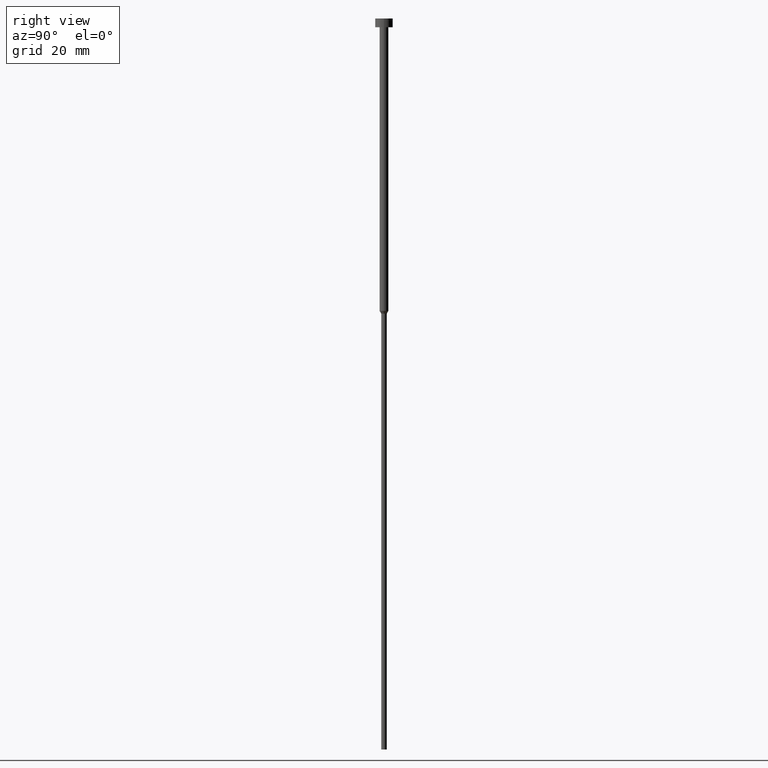
[diagram: clean part render]
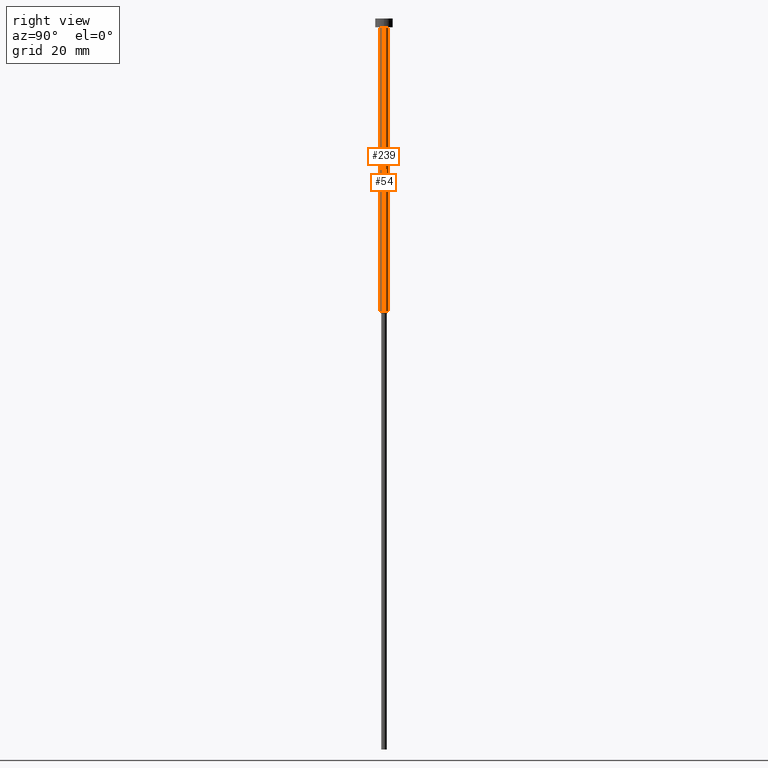
[diagram: same view with one multi-face feature highlighted, each face labeled with its STEP entity id]
A machine part, right view. The highlighted faces form ONE feature: a constant-radius fillet chain: 2 tangent blend faces with common blend radius 1.5 mm. The faces share edges in the B-rep.
Their STEP definitions:
[1] entity #239 (Cylinder):
#7 = EDGE_CURVE ( 'NONE', #134, #35, #20, .T. ) ;
#8 = CIRCLE ( 'NONE', #208, 1.500000000000000000 ) ;
#18 = ORIENTED_EDGE ( 'NONE', *, *, #7, .T. ) ;
#20 = LINE ( 'NONE', #65, #23 ) ;
#21 = ORIENTED_EDGE ( 'NONE', *, *, #204, .F. ) ;
#23 = VECTOR ( 'NONE', #169, 1000.000000000000000 ) ;
#35 = VERTEX_POINT ( 'NONE', #69 ) ;
#61 = EDGE_CURVE ( 'NONE', #263, #134, #317, .T. ) ;
#65 = CARTESIAN_POINT ( 'NONE',  ( 1.500000000000000000, 0.000000000000000000, 0.000000000000000000 ) ) ;
#69 = CARTESIAN_POINT ( 'NONE',  ( 1.500000000000000000, 0.000000000000000000, -3.000000000000000888 ) ) ;
#97 = CARTESIAN_POINT ( 'NONE',  ( 1.500000000000000000, 0.000000000000000000, -100.0000000000000000 ) ) ;
#101 = ORIENTED_EDGE ( 'NONE', *, *, #130, .F. ) ;
#118 = CARTESIAN_POINT ( 'NONE',  ( 0.000000000000000000, 0.000000000000000000, 0.000000000000000000 ) ) ;
#125 = ORIENTED_EDGE ( 'NONE', *, *, #61, .T. ) ;
#130 = EDGE_CURVE ( 'NONE', #263, #209, #258, .T. ) ;
#134 = VERTEX_POINT ( 'NONE', #97 ) ;
#144 = FACE_OUTER_BOUND ( 'NONE', #188, .T. ) ;
#147 = VECTOR ( 'NONE', #307, 1000.000000000000000 ) ;
#155 = CARTESIAN_POINT ( 'NONE',  ( -1.500000000000000000, 1.836970198721029934E-16, -100.0000000000000000 ) ) ;
#162 = AXIS2_PLACEMENT_3D ( 'NONE', #172, #330, #192 ) ;
#169 = DIRECTION ( 'NONE',  ( -0.000000000000000000, -0.000000000000000000, 1.000000000000000000 ) ) ;
#172 = CARTESIAN_POINT ( 'NONE',  ( 0.000000000000000000, 0.000000000000000000, -100.0000000000000000 ) ) ;
#182 = AXIS2_PLACEMENT_3D ( 'NONE', #118, #326, #332 ) ;
#188 = EDGE_LOOP ( 'NONE', ( #101, #125, #18, #21 ) ) ;
#192 = DIRECTION ( 'NONE',  ( 1.000000000000000000, 0.000000000000000000, 0.000000000000000000 ) ) ;
#204 = EDGE_CURVE ( 'NONE', #209, #35, #8, .T. ) ;
#208 = AXIS2_PLACEMENT_3D ( 'NONE', #238, #288, #242 ) ;
#209 = VERTEX_POINT ( 'NONE', #289 ) ;
#238 = CARTESIAN_POINT ( 'NONE',  ( 0.000000000000000000, 0.000000000000000000, -3.000000000000000888 ) ) ;
#239 = ADVANCED_FACE ( 'NONE', ( #144 ), #244, .T. ) ;
#242 = DIRECTION ( 'NONE',  ( 1.000000000000000000, 0.000000000000000000, 0.000000000000000000 ) ) ;
#244 = CYLINDRICAL_SURFACE ( 'NONE', #182, 1.500000000000000000 ) ;
#258 = LINE ( 'NONE', #343, #147 ) ;
#263 = VERTEX_POINT ( 'NONE', #155 ) ;
#288 = DIRECTION ( 'NONE',  ( -0.000000000000000000, -0.000000000000000000, 1.000000000000000000 ) ) ;
#289 = CARTESIAN_POINT ( 'NONE',  ( -1.500000000000000000, 1.836970198721029934E-16, -3.000000000000000888 ) ) ;
#307 = DIRECTION ( 'NONE',  ( -0.000000000000000000, -0.000000000000000000, 1.000000000000000000 ) ) ;
#317 = CIRCLE ( 'NONE', #162, 1.500000000000000000 ) ;
#326 = DIRECTION ( 'NONE',  ( -0.000000000000000000, -0.000000000000000000, 1.000000000000000000 ) ) ;
#330 = DIRECTION ( 'NONE',  ( -0.000000000000000000, -0.000000000000000000, 1.000000000000000000 ) ) ;
#332 = DIRECTION ( 'NONE',  ( 1.000000000000000000, 0.000000000000000000, 0.000000000000000000 ) ) ;
#343 = CARTESIAN_POINT ( 'NONE',  ( -1.500000000000000000, 1.836970198721029934E-16, 0.000000000000000000 ) ) ;
[2] entity #54 (Cylinder):
#3 = CARTESIAN_POINT ( 'NONE',  ( 0.000000000000000000, 0.000000000000000000, -100.0000000000000000 ) ) ;
#7 = EDGE_CURVE ( 'NONE', #134, #35, #20, .T. ) ;
#14 = ORIENTED_EDGE ( 'NONE', *, *, #270, .F. ) ;
#17 = CIRCLE ( 'NONE', #215, 1.500000000000000000 ) ;
#20 = LINE ( 'NONE', #65, #23 ) ;
#23 = VECTOR ( 'NONE', #169, 1000.000000000000000 ) ;
#25 = AXIS2_PLACEMENT_3D ( 'NONE', #216, #292, #87 ) ;
#35 = VERTEX_POINT ( 'NONE', #69 ) ;
#36 = DIRECTION ( 'NONE',  ( 1.000000000000000000, 0.000000000000000000, 0.000000000000000000 ) ) ;
#38 = DIRECTION ( 'NONE',  ( -0.000000000000000000, -0.000000000000000000, 1.000000000000000000 ) ) ;
#54 = ADVANCED_FACE ( 'NONE', ( #291 ), #120, .T. ) ;
#65 = CARTESIAN_POINT ( 'NONE',  ( 1.500000000000000000, 0.000000000000000000, 0.000000000000000000 ) ) ;
#69 = CARTESIAN_POINT ( 'NONE',  ( 1.500000000000000000, 0.000000000000000000, -3.000000000000000888 ) ) ;
#71 = CIRCLE ( 'NONE', #86, 1.500000000000000000 ) ;
#86 = AXIS2_PLACEMENT_3D ( 'NONE', #179, #269, #126 ) ;
#87 = DIRECTION ( 'NONE',  ( 1.000000000000000000, 0.000000000000000000, 0.000000000000000000 ) ) ;
#97 = CARTESIAN_POINT ( 'NONE',  ( 1.500000000000000000, 0.000000000000000000, -100.0000000000000000 ) ) ;
#120 = CYLINDRICAL_SURFACE ( 'NONE', #25, 1.500000000000000000 ) ;
#126 = DIRECTION ( 'NONE',  ( 1.000000000000000000, 0.000000000000000000, 0.000000000000000000 ) ) ;
#130 = EDGE_CURVE ( 'NONE', #263, #209, #258, .T. ) ;
#134 = VERTEX_POINT ( 'NONE', #97 ) ;
#147 = VECTOR ( 'NONE', #307, 1000.000000000000000 ) ;
#154 = ORIENTED_EDGE ( 'NONE', *, *, #130, .T. ) ;
#155 = CARTESIAN_POINT ( 'NONE',  ( -1.500000000000000000, 1.836970198721029934E-16, -100.0000000000000000 ) ) ;
#159 = ORIENTED_EDGE ( 'NONE', *, *, #290, .T. ) ;
#169 = DIRECTION ( 'NONE',  ( -0.000000000000000000, -0.000000000000000000, 1.000000000000000000 ) ) ;
#179 = CARTESIAN_POINT ( 'NONE',  ( 0.000000000000000000, 0.000000000000000000, -3.000000000000000888 ) ) ;
#209 = VERTEX_POINT ( 'NONE', #289 ) ;
#215 = AXIS2_PLACEMENT_3D ( 'NONE', #3, #38, #36 ) ;
#216 = CARTESIAN_POINT ( 'NONE',  ( 0.000000000000000000, 0.000000000000000000, 0.000000000000000000 ) ) ;
#258 = LINE ( 'NONE', #343, #147 ) ;
#263 = VERTEX_POINT ( 'NONE', #155 ) ;
#269 = DIRECTION ( 'NONE',  ( -0.000000000000000000, -0.000000000000000000, 1.000000000000000000 ) ) ;
#270 = EDGE_CURVE ( 'NONE', #35, #209, #71, .T. ) ;
#289 = CARTESIAN_POINT ( 'NONE',  ( -1.500000000000000000, 1.836970198721029934E-16, -3.000000000000000888 ) ) ;
#290 = EDGE_CURVE ( 'NONE', #134, #263, #17, .T. ) ;
#291 = FACE_OUTER_BOUND ( 'NONE', #346, .T. ) ;
#292 = DIRECTION ( 'NONE',  ( -0.000000000000000000, -0.000000000000000000, 1.000000000000000000 ) ) ;
#295 = ORIENTED_EDGE ( 'NONE', *, *, #7, .F. ) ;
#307 = DIRECTION ( 'NONE',  ( -0.000000000000000000, -0.000000000000000000, 1.000000000000000000 ) ) ;
#343 = CARTESIAN_POINT ( 'NONE',  ( -1.500000000000000000, 1.836970198721029934E-16, 0.000000000000000000 ) ) ;
#346 = EDGE_LOOP ( 'NONE', ( #159, #154, #14, #295 ) ) ;